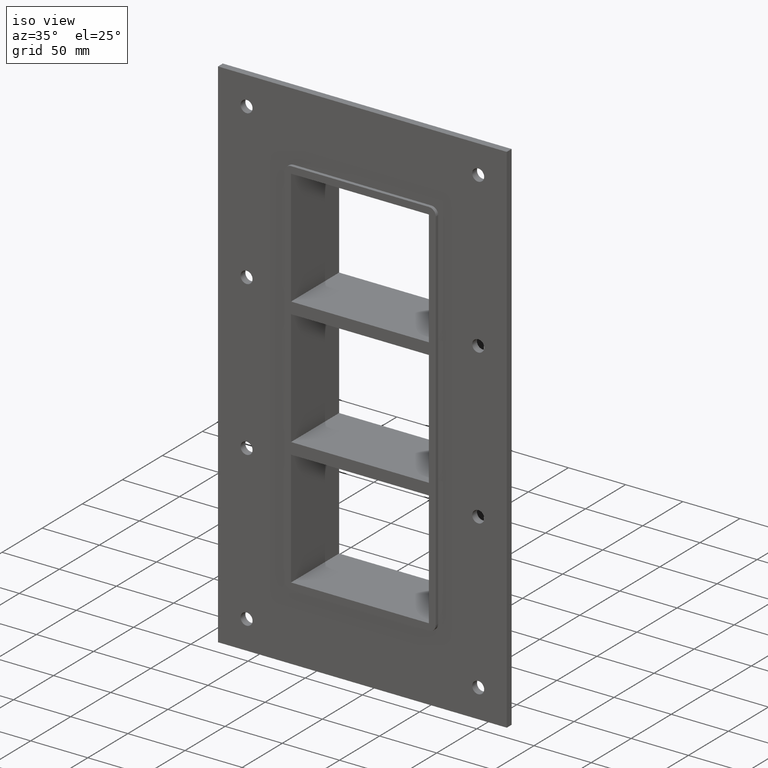
[diagram: clean part render]
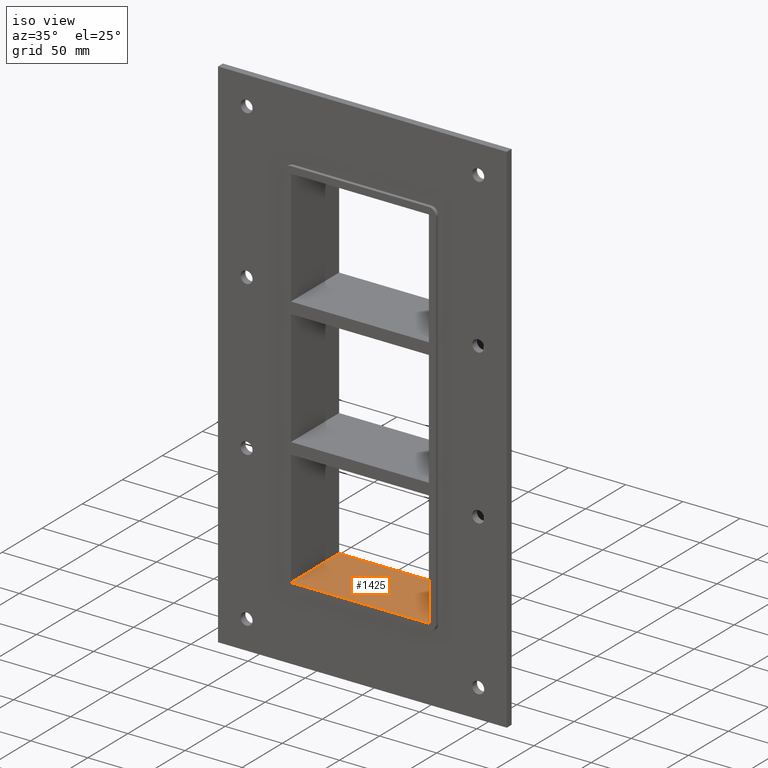
[diagram: same view with one face highlighted and labeled with its STEP entity id]
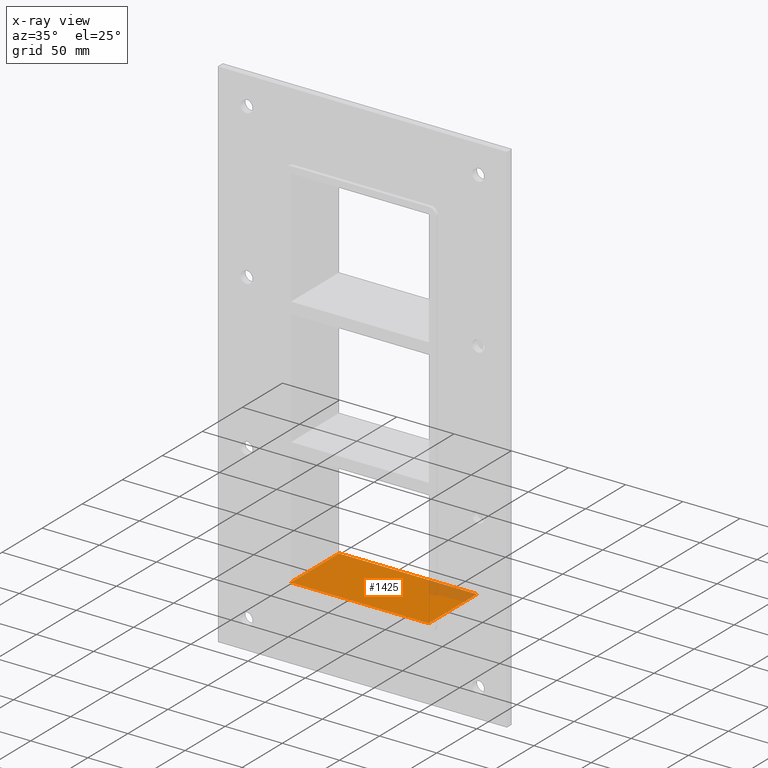
[diagram: x-ray of the same camera — body ghosted, the highlighted face saturated]
A machine part, iso view. The second image highlights one B-rep face of the part: STEP entity #1425.
The next image is the same camera in x-ray: the body ghosted, the highlighted face saturated — about 9% of this face is hidden behind the body in this view.
In plain terms, the highlighted planar face has unit normal (0, 0, -1).
Its self-contained STEP definition (entity closure, byte-faithful):
#564=CARTESIAN_POINT('',(60.249999999999986,57.0,-161.5));
#565=VERTEX_POINT('',#564);
#572=CARTESIAN_POINT('',(60.249999999999986,-3.0,-161.5));
#573=VERTEX_POINT('',#572);
#574=CARTESIAN_POINT('',(60.249999999999986,56.999999999999993,-161.5));
#575=DIRECTION('',(0.0,-1.0,0.0));
#576=VECTOR('',#575,59.999999999999993);
#577=LINE('',#574,#576);
#578=EDGE_CURVE('',#565,#573,#577,.T.);
#931=CARTESIAN_POINT('',(-60.249999999999986,-3.0,-161.5));
#932=VERTEX_POINT('',#931);
#939=CARTESIAN_POINT('',(-60.249999999999986,57.0,-161.5));
#940=VERTEX_POINT('',#939);
#941=CARTESIAN_POINT('',(-60.249999999999986,-3.0,-161.5));
#942=DIRECTION('',(0.0,1.0,0.0));
#943=VECTOR('',#942,60.0);
#944=LINE('',#941,#943);
#945=EDGE_CURVE('',#932,#940,#944,.T.);
#1291=CARTESIAN_POINT('',(60.249999999999986,-3.0,-161.5));
#1292=DIRECTION('',(-1.0,0.0,0.0));
#1293=VECTOR('',#1292,120.49999999999997);
#1294=LINE('',#1291,#1293);
#1295=EDGE_CURVE('',#573,#932,#1294,.T.);
#1409=CARTESIAN_POINT('',(60.249999999999986,0.0,-161.5));
#1410=DIRECTION('',(0.0,0.0,-1.0));
#1411=DIRECTION('',(-1.0,0.0,0.0));
#1412=AXIS2_PLACEMENT_3D('',#1409,#1410,#1411);
#1413=PLANE('',#1412);
#1414=ORIENTED_EDGE('',*,*,#945,.F.);
#1415=ORIENTED_EDGE('',*,*,#1295,.F.);
#1416=ORIENTED_EDGE('',*,*,#578,.F.);
#1417=CARTESIAN_POINT('',(-60.249999999999979,57.0,-161.5));
#1418=DIRECTION('',(1.0,0.0,0.0));
#1419=VECTOR('',#1418,120.49999999999997);
#1420=LINE('',#1417,#1419);
#1421=EDGE_CURVE('',#940,#565,#1420,.T.);
#1422=ORIENTED_EDGE('',*,*,#1421,.F.);
#1423=EDGE_LOOP('',(#1414,#1415,#1416,#1422));
#1424=FACE_OUTER_BOUND('',#1423,.T.);
#1425=ADVANCED_FACE('',(#1424),#1413,.F.);